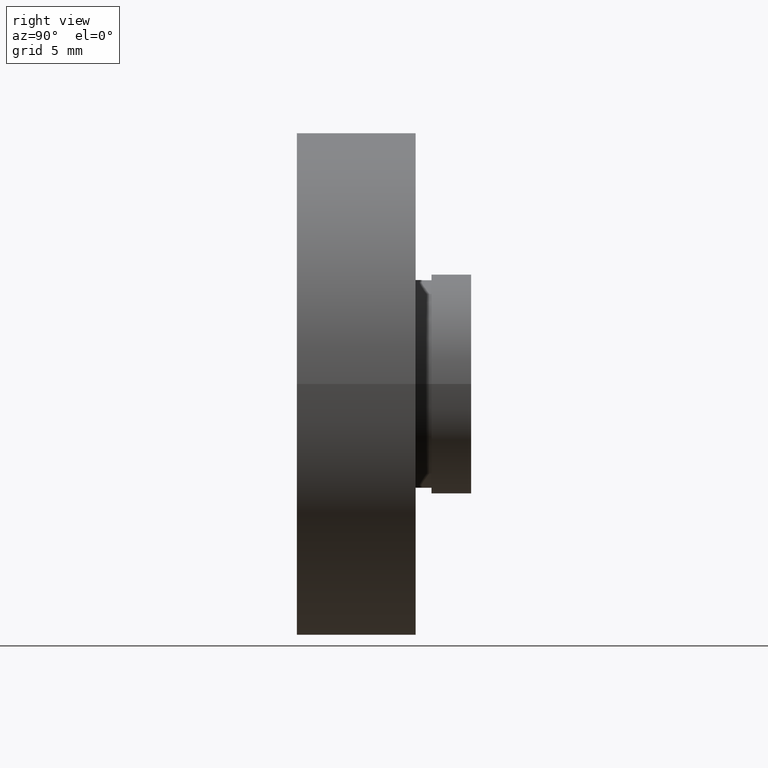
[diagram: clean part render]
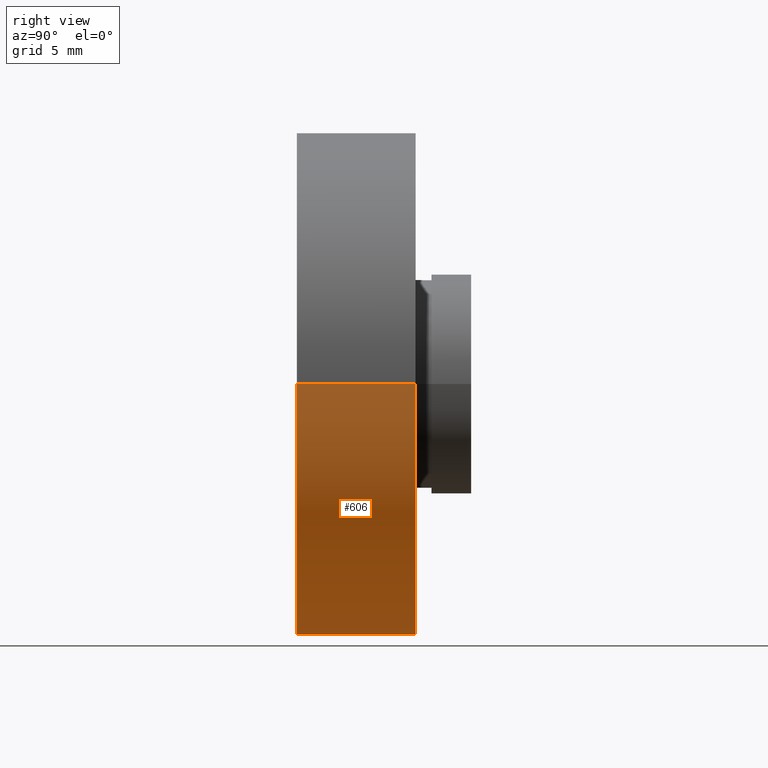
[diagram: same view with one face highlighted and labeled with its STEP entity id]
A machine part, right view. The second image highlights one B-rep face of the part: STEP entity #606.
In plain terms, the highlighted cylindrical surface (partial cylindrical patch) has radius 15.875 mm, axis along (-0, 1, -0).
Its self-contained STEP definition (entity closure, byte-faithful):
#25 = CARTESIAN_POINT ( 'NONE',  ( 1.149455719078122700E-015, 7.499999999999998200, 0.0000000000000000000 ) ) ;
#55 = FACE_OUTER_BOUND ( 'NONE', #347, .T. ) ;
#68 = DIRECTION ( 'NONE',  ( -1.000000000000000000, -1.224646799147350700E-016, 0.0000000000000000000 ) ) ;
#83 = DIRECTION ( 'NONE',  ( -1.000000000000000000, -2.185478394931410600E-016, 0.0000000000000000000 ) ) ;
#85 = DIRECTION ( 'NONE',  ( -1.224646799147351000E-016, 1.000000000000000000, -0.0000000000000000000 ) ) ;
#99 = VERTEX_POINT ( 'NONE', #431 ) ;
#100 = ORIENTED_EDGE ( 'NONE', *, *, #425, .T. ) ;
#103 = CIRCLE ( 'NONE', #153, 15.87500000000000000 ) ;
#119 = DIRECTION ( 'NONE',  ( -1.224646799147351000E-016, 1.000000000000000000, -0.0000000000000000000 ) ) ;
#142 = EDGE_CURVE ( 'NONE', #99, #200, #240, .T. ) ;
#143 = DIRECTION ( 'NONE',  ( -1.224646799147351000E-016, 1.000000000000000000, -0.0000000000000000000 ) ) ;
#153 = AXIS2_PLACEMENT_3D ( 'NONE', #25, #253, #212 ) ;
#158 = CYLINDRICAL_SURFACE ( 'NONE', #263, 15.87500000000000000 ) ;
#179 = CARTESIAN_POINT ( 'NONE',  ( -15.87500000000000000, 16.88601823708207300, 0.0000000000000000000 ) ) ;
#200 = VERTEX_POINT ( 'NONE', #497 ) ;
#212 = DIRECTION ( 'NONE',  ( -1.000000000000000000, -1.092739197465705300E-016, 0.0000000000000000000 ) ) ;
#215 = VECTOR ( 'NONE', #85, 1000.000000000000000 ) ;
#221 = EDGE_CURVE ( 'NONE', #248, #423, #103, .T. ) ;
#231 = ORIENTED_EDGE ( 'NONE', *, *, #221, .F. ) ;
#240 = CIRCLE ( 'NONE', #371, 15.87499999999999600 ) ;
#248 = VERTEX_POINT ( 'NONE', #450 ) ;
#253 = DIRECTION ( 'NONE',  ( -1.224646799147351000E-016, 1.000000000000000000, -0.0000000000000000000 ) ) ;
#263 = AXIS2_PLACEMENT_3D ( 'NONE', #565, #143, #83 ) ;
#265 = DIRECTION ( 'NONE',  ( -1.224646799147351000E-016, 1.000000000000000000, -0.0000000000000000000 ) ) ;
#302 = CARTESIAN_POINT ( 'NONE',  ( 2.067940818438636500E-015, -3.469446951953614200E-015, 0.0000000000000000000 ) ) ;
#347 = EDGE_LOOP ( 'NONE', ( #611, #381, #100, #231 ) ) ;
#371 = AXIS2_PLACEMENT_3D ( 'NONE', #302, #119, #68 ) ;
#381 = ORIENTED_EDGE ( 'NONE', *, *, #142, .T. ) ;
#423 = VERTEX_POINT ( 'NONE', #566 ) ;
#425 = EDGE_CURVE ( 'NONE', #200, #423, #448, .T. ) ;
#431 = CARTESIAN_POINT ( 'NONE',  ( 15.87500000000000000, -1.525320158307194900E-015, 1.944126793646423200E-015 ) ) ;
#448 = LINE ( 'NONE', #179, #215 ) ;
#450 = CARTESIAN_POINT ( 'NONE',  ( 15.87500000000000000, 7.500000000000000000, 1.944126793646423200E-015 ) ) ;
#497 = CARTESIAN_POINT ( 'NONE',  ( -15.87499999999999300, -5.413573745600033100E-015, 0.0000000000000000000 ) ) ;
#504 = CARTESIAN_POINT ( 'NONE',  ( 15.87500000000000000, 16.88601823708208000, 1.944126793646423200E-015 ) ) ;
#522 = VECTOR ( 'NONE', #265, 1000.000000000000000 ) ;
#565 = CARTESIAN_POINT ( 'NONE',  ( 0.0000000000000000000, 16.88601823708207700, 0.0000000000000000000 ) ) ;
#566 = CARTESIAN_POINT ( 'NONE',  ( -15.87500000000000000, 7.499999999999996400, 0.0000000000000000000 ) ) ;
#574 = LINE ( 'NONE', #504, #522 ) ;
#582 = EDGE_CURVE ( 'NONE', #99, #248, #574, .T. ) ;
#606 = ADVANCED_FACE ( 'NONE', ( #55 ), #158, .T. ) ;
#611 = ORIENTED_EDGE ( 'NONE', *, *, #582, .F. ) ;